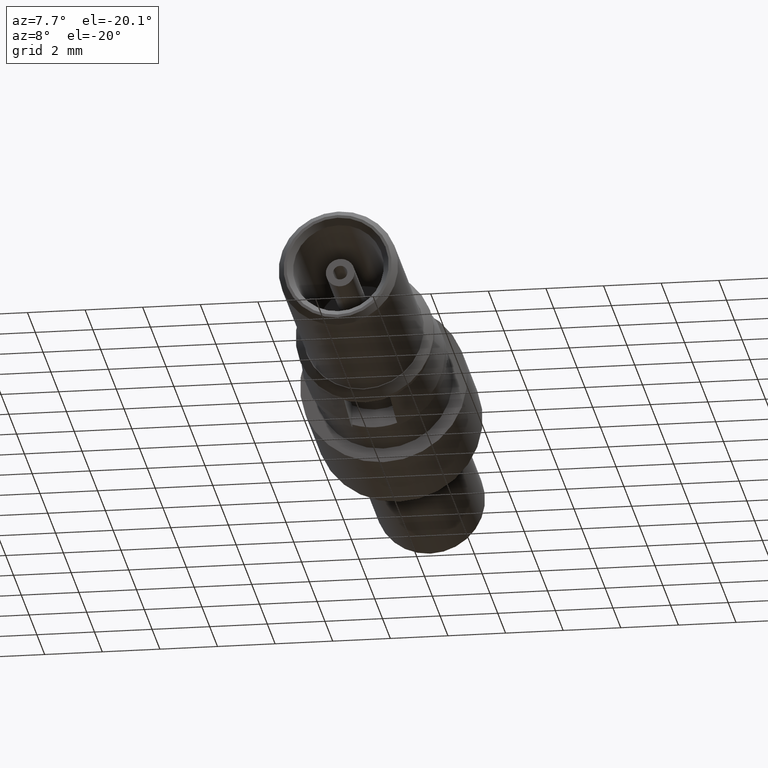
[diagram: clean part render]
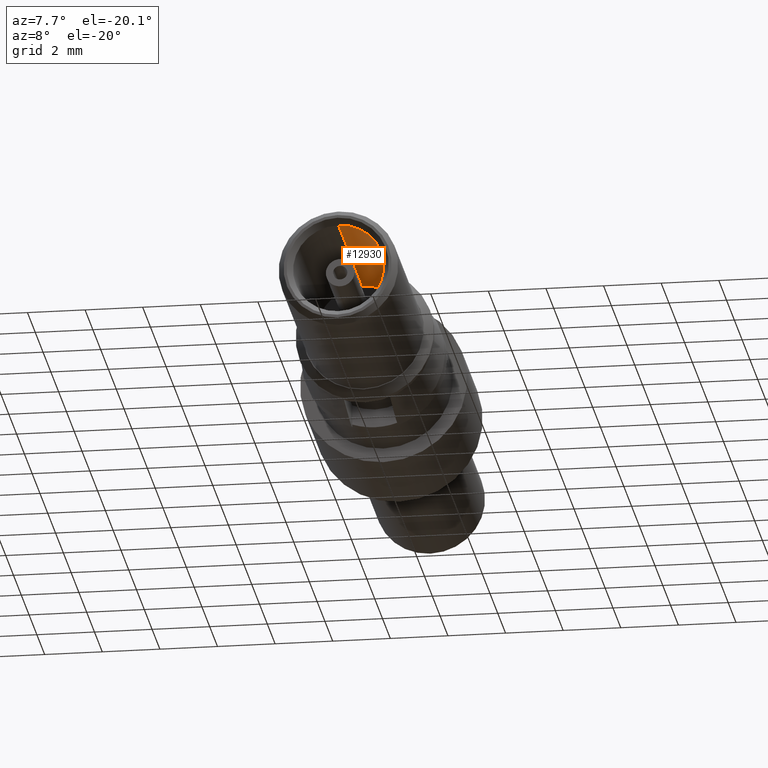
[diagram: same view with one face highlighted and labeled with its STEP entity id]
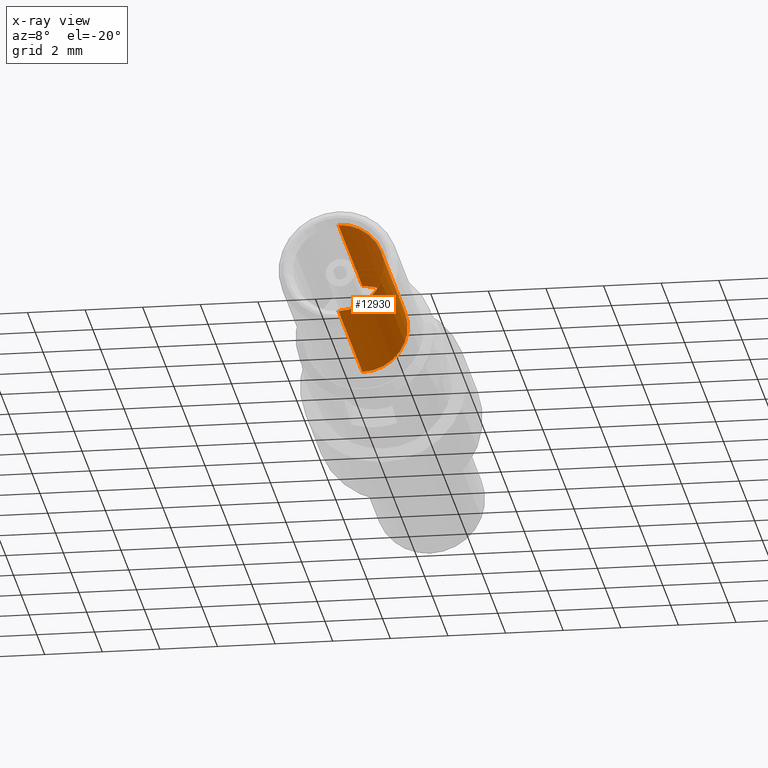
[diagram: x-ray of the same camera — body ghosted, the highlighted face saturated]
A machine part, auxiliary view. The second image highlights one B-rep face of the part: STEP entity #12930.
The next image is the same camera in x-ray: the body ghosted, the highlighted face saturated — about 1% of this face is hidden behind the body in this view.
In plain terms, the highlighted cylindrical surface (partial cylindrical patch) has radius 1.575 mm, axis along (0, 1, -0).
Its self-contained STEP definition (entity closure, byte-faithful):
#2570=CARTESIAN_POINT('',(66.6468230000002,75.8045149999963,
-8.12499999999949));
#2580=DIRECTION('',(0.,0.,1.));
#2590=VECTOR('',#2580,1.);
#2600=LINE('',#2570,#2590);
#2610=CARTESIAN_POINT('',(66.6468230000002,75.8045149999963,
-20.8499999999995));
#2620=VERTEX_POINT('',#2610);
#2630=CARTESIAN_POINT('',(66.6468230000002,75.8045149999963,
-14.6999999999995));
#2640=VERTEX_POINT('',#2630);
#2650=EDGE_CURVE('',#2620,#2640,#2600,.T.);
#2670=CARTESIAN_POINT('',(66.6468230000002,77.3795149999963,
-20.8499999999995));
#2680=DIRECTION('',(0.,0.,1.));
#2690=DIRECTION('',(0.,1.,0.));
#2700=AXIS2_PLACEMENT_3D('',#2670,#2680,#2690);
#2710=CIRCLE('',#2700,1.575);
#2720=CARTESIAN_POINT('',(66.6468230000002,78.9545149999963,
-20.8499999999995));
#2730=VERTEX_POINT('',#2720);
#2760=CARTESIAN_POINT('',(66.6468230000002,78.9545149999963,
-8.12499999999949));
#2770=DIRECTION('',(0.,0.,1.));
#2780=VECTOR('',#2770,1.);
#2790=LINE('',#2760,#2780);
#2800=CARTESIAN_POINT('',(66.6468230000002,78.9545149999963,
-14.6999999999995));
#2810=VERTEX_POINT('',#2800);
#2820=EDGE_CURVE('',#2730,#2810,#2790,.T.);
#2840=CARTESIAN_POINT('',(66.6468230000002,77.3795149999963,
-14.6999999999995));
#2850=DIRECTION('',(0.,0.,1.));
#2860=DIRECTION('',(0.,1.,0.));
#2870=AXIS2_PLACEMENT_3D('',#2840,#2850,#2860);
#2880=CIRCLE('',#2870,1.575);
#9640=EDGE_CURVE('',#2810,#2640,#2880,.T.);
#12270=EDGE_CURVE('',#2730,#2620,#2710,.T.);
#12820=CARTESIAN_POINT('',(66.6468230000002,77.3795149999963,
-8.12499999999949));
#12830=DIRECTION('',(0.,0.,1.));
#12840=DIRECTION('',(0.,1.,0.));
#12850=AXIS2_PLACEMENT_3D('',#12820,#12830,#12840);
#12860=CYLINDRICAL_SURFACE('',#12850,1.575);
#12870=ORIENTED_EDGE('',*,*,#12270,.F.);
#12880=ORIENTED_EDGE('',*,*,#2650,.F.);
#12890=ORIENTED_EDGE('',*,*,#9640,.T.);
#12900=ORIENTED_EDGE('',*,*,#2820,.T.);
#12910=EDGE_LOOP('',(#12900,#12890,#12880,#12870));
#12920=FACE_OUTER_BOUND('',#12910,.T.);
#12930=ADVANCED_FACE('',(#12920),#12860,.F.);